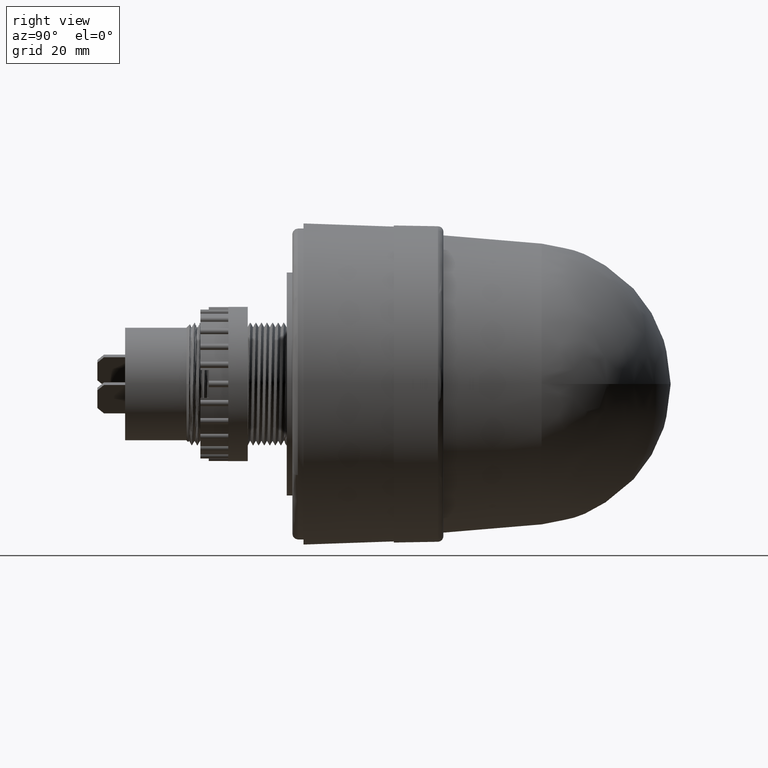
[diagram: clean part render]
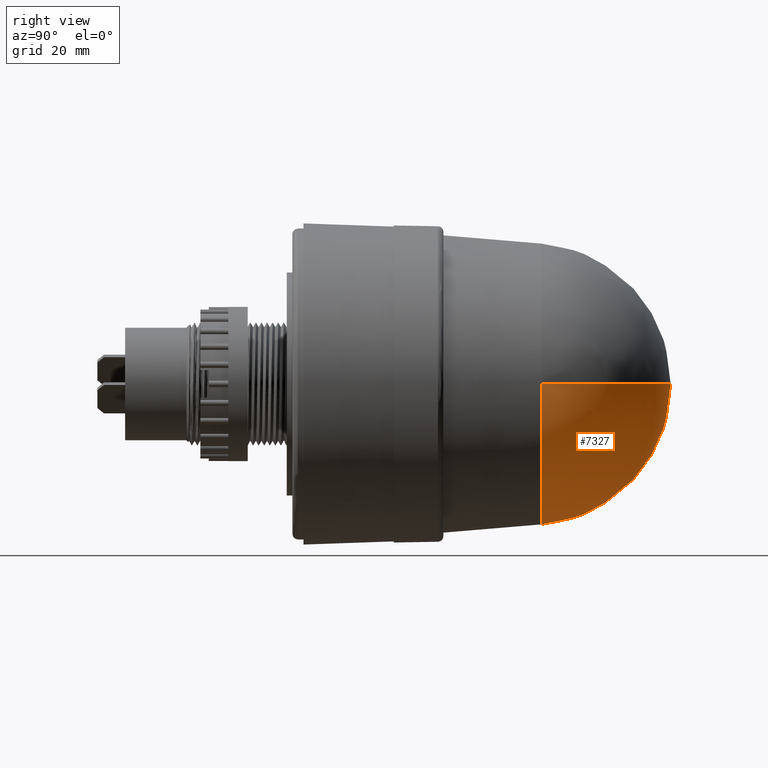
[diagram: same view with one face highlighted and labeled with its STEP entity id]
A machine part, right view. The second image highlights one B-rep face of the part: STEP entity #7327.
In plain terms, the highlighted face is a freeform B-spline surface patch.
Its self-contained STEP definition (entity closure, byte-faithful):
#340 = CARTESIAN_POINT ( 'NONE',  ( 0.0000000000000000000, 1.044590905021626400, -0.9919034824833203900 ) ) ;
#430 = CARTESIAN_POINT ( 'NONE',  ( 0.9932317794523900500, 1.026878813782960800, -0.03617367985142560400 ) ) ;
#508 = CARTESIAN_POINT ( 'NONE',  ( -0.9932317794523900500, 1.026878813782960300, 1.365923996832131600E-016 ) ) ;
#578 = CARTESIAN_POINT ( 'NONE',  ( 0.9919034824665894400, 1.044590905021626400, 0.0000000000000000000 ) ) ;
#869 = CARTESIAN_POINT ( 'NONE',  ( 0.9932317794523900500, 0.9662027917181608100, -0.06539673130670534100 ) ) ;
#1783 = EDGE_LOOP ( 'NONE', ( #2292, #5136, #10107 ) ) ;
#2292 = ORIENTED_EDGE ( 'NONE', *, *, #18753, .F. ) ;
#2300 = CARTESIAN_POINT ( 'NONE',  ( 0.8775934012331952900, 1.097177141016342900, -1.811865796838913400 ) ) ;
#2673 = FACE_OUTER_BOUND ( 'NONE', #1783, .T. ) ;
#4118 = CARTESIAN_POINT ( 'NONE',  ( 0.8775934012331951800, 2.778252125511509800, -1.002219101153744500 ) ) ;
#4492 = DIRECTION ( 'NONE',  ( 0.0000000000000000000, 1.000000000000000000, 3.251590395560809100E-017 ) ) ;
#4892 =( BOUNDED_SURFACE ( )  B_SPLINE_SURFACE ( 3, 3, ( 
 ( #869, #11240, #430, #13006 ),
 ( #2300, #14811, #4118, #16574 ),
 ( #5924, #18356, #7717, #20099 ),
 ( #9520, #21882, #11315, #508 ) ),
 .UNSPECIFIED., .F., .F., .T. ) 
 B_SPLINE_SURFACE_WITH_KNOTS ( ( 4, 4 ),
 ( 4, 4 ),
 ( 0.0000000000000000000, 1.000000000000000000 ),
 ( 0.0000000000000000000, 1.000000000000000000 ),
 .UNSPECIFIED. ) 
 GEOMETRIC_REPRESENTATION_ITEM ( )  RATIONAL_B_SPLINE_SURFACE ( (
 ( 1.000000000000000000, 0.8220467914751358200, 0.8220467914751358200, 1.000000000000000000),
 ( 0.3772558674122128400, 0.3101219753713788100, 0.3101219753713788100, 0.3772558674122128400),
 ( 0.3772558674122128400, 0.3101219753713788100, 0.3101219753713788100, 0.3772558674122128400),
 ( 1.000000000000000000, 0.8220467914751358200, 0.8220467914751358200, 1.000000000000000000) ) ) 
 REPRESENTATION_ITEM ( '' )  SURFACE ( )  );
#5136 = ORIENTED_EDGE ( 'NONE', *, *, #6431, .T. ) ;
#5196 = VERTEX_POINT ( 'NONE', #578 ) ;
#5835 = DIRECTION ( 'NONE',  ( 0.0000000000000000000, 1.000000000000000000, 3.251590395560809100E-017 ) ) ;
#5924 = CARTESIAN_POINT ( 'NONE',  ( -0.8775934012331961800, 1.097177141016342900, -1.811865796838913400 ) ) ;
#6248 = VERTEX_POINT ( 'NONE', #340 ) ;
#6431 = EDGE_CURVE ( 'NONE', #5196, #6248, #19707, .T. ) ;
#6570 = CIRCLE ( 'NONE', #10391, 0.9919034824833203900 ) ;
#7293 = VERTEX_POINT ( 'NONE', #15155 ) ;
#7327 = ADVANCED_FACE ( 'NONE', ( #2673 ), #4892, .T. ) ;
#7717 = CARTESIAN_POINT ( 'NONE',  ( -0.8775934012331961800, 2.778252125511509800, -1.002219101153744500 ) ) ;
#9520 = CARTESIAN_POINT ( 'NONE',  ( -0.9932317794523900500, 0.9662027917181608100, -0.06539673130670493900 ) ) ;
#9878 = EDGE_CURVE ( 'NONE', #6248, #7293, #6570, .T. ) ;
#10107 = ORIENTED_EDGE ( 'NONE', *, *, #9878, .T. ) ;
#10166 = DIRECTION ( 'NONE',  ( 0.0000000000000000000, 0.0000000000000000000, 1.000000000000000000 ) ) ;
#10391 = AXIS2_PLACEMENT_3D ( 'NONE', #16477, #5835, #18269 ) ;
#11240 = CARTESIAN_POINT ( 'NONE',  ( 0.9932317794523900500, 1.002275176985141900, -0.06269152611228270800 ) ) ;
#11315 = CARTESIAN_POINT ( 'NONE',  ( -0.9932317794523900500, 1.026878813782960500, -0.03617367985142531900 ) ) ;
#13006 = CARTESIAN_POINT ( 'NONE',  ( 0.9932317794523900500, 1.026878813782960800, 0.0000000000000000000 ) ) ;
#13790 = CIRCLE ( 'NONE', #18020, 0.9953944709620219400 ) ;
#14811 = CARTESIAN_POINT ( 'NONE',  ( 0.8775934012331951800, 2.096589799259361600, -1.736916045264667000 ) ) ;
#15155 = CARTESIAN_POINT ( 'NONE',  ( -0.9919034824665894400, 1.044590905021626400, 0.0000000000000000000 ) ) ;
#15167 = CARTESIAN_POINT ( 'NONE',  ( 0.0000000000000000000, 1.044590905021626400, 2.257244961922242700E-017 ) ) ;
#16477 = CARTESIAN_POINT ( 'NONE',  ( 0.0000000000000000000, 1.044590905021626400, 2.257244961922242700E-017 ) ) ;
#16574 = CARTESIAN_POINT ( 'NONE',  ( 0.8775934012331952900, 2.778252125511510700, -5.463695987328526400E-016 ) ) ;
#16933 = DIRECTION ( 'NONE',  ( 0.0000000000000000000, 0.0000000000000000000, -1.000000000000000000 ) ) ;
#17412 = AXIS2_PLACEMENT_3D ( 'NONE', #15167, #4492, #16933 ) ;
#18020 = AXIS2_PLACEMENT_3D ( 'NONE', #20749, #10166, #22512 ) ;
#18269 = DIRECTION ( 'NONE',  ( 0.0000000000000000000, 0.0000000000000000000, -1.000000000000000000 ) ) ;
#18356 = CARTESIAN_POINT ( 'NONE',  ( -0.8775934012331961800, 2.096589799259361600, -1.736916045264667000 ) ) ;
#18753 = EDGE_CURVE ( 'NONE', #5196, #7293, #13790, .T. ) ;
#19707 = CIRCLE ( 'NONE', #17412, 0.9919034824833203900 ) ;
#20099 = CARTESIAN_POINT ( 'NONE',  ( -0.8775934012331961800, 2.778252125511510700, -5.463695987328526400E-016 ) ) ;
#20749 = CARTESIAN_POINT ( 'NONE',  ( 0.0000000000000000000, 0.9612984424238241200, 0.0000000000000000000 ) ) ;
#21882 = CARTESIAN_POINT ( 'NONE',  ( -0.9932317794523900500, 1.002275176985141900, -0.06269152611228229200 ) ) ;
#22512 = DIRECTION ( 'NONE',  ( 1.000000000000000000, 0.0000000000000000000, 0.0000000000000000000 ) ) ;